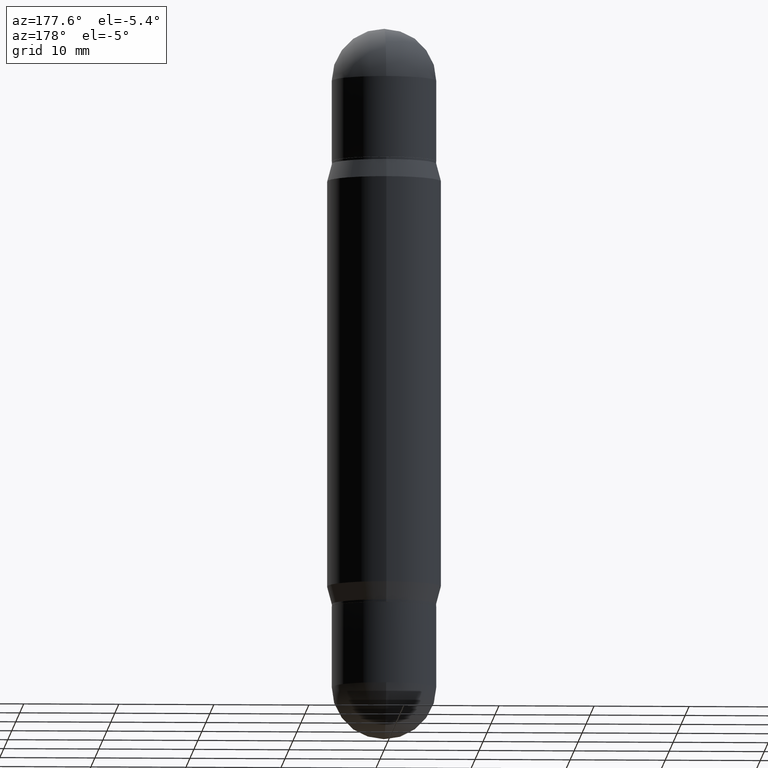
[diagram: clean part render]
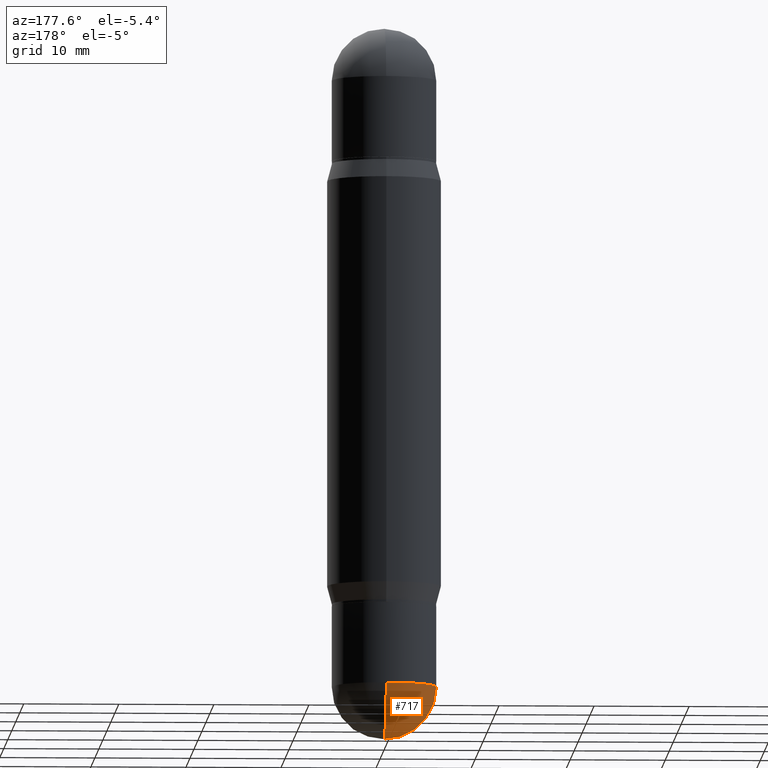
[diagram: same view with one face highlighted and labeled with its STEP entity id]
A machine part, auxiliary view. The second image highlights one B-rep face of the part: STEP entity #717.
In plain terms, the highlighted spherical surface has radius 5.5004 mm.
Its self-contained STEP definition (entity closure, byte-faithful):
#1 = DIRECTION ( 'NONE',  ( 6.982962677686265922E-15, 1.000000000000000000, 0.000000000000000000 ) ) ;
#38 = ORIENTED_EDGE ( 'NONE', *, *, #861, .F. ) ;
#114 = AXIS2_PLACEMENT_3D ( 'NONE', #777, #1048, #1 ) ;
#133 = EDGE_CURVE ( 'NONE', #1040, #602, #221, .T. ) ;
#134 = CIRCLE ( 'NONE', #1106, 0.2165500000000003811 ) ;
#137 = DIRECTION ( 'NONE',  ( -1.000000000000000000, 6.982962677686265922E-15, -4.883557194083112340E-29 ) ) ;
#163 = ORIENTED_EDGE ( 'NONE', *, *, #277, .F. ) ;
#204 = DIRECTION ( 'NONE',  ( 6.982962677686265922E-15, 1.000000000000000000, -2.523064413451173785E-15 ) ) ;
#219 = DIRECTION ( 'NONE',  ( -2.445468806185136597E-29, 3.491481338843145583E-15, 1.000000000000000000 ) ) ;
#221 = CIRCLE ( 'NONE', #114, 0.2165500000000003811 ) ;
#223 = VERTEX_POINT ( 'NONE', #969 ) ;
#229 = CARTESIAN_POINT ( 'NONE',  ( 6.691414020924079206E-29, -9.553565813409555750E-15, -2.736249999999999627 ) ) ;
#277 = EDGE_CURVE ( 'NONE', #602, #223, #315, .T. ) ;
#301 = SPHERICAL_SURFACE ( 'NONE', #498, 0.2165500000000003811 ) ;
#315 = CIRCLE ( 'NONE', #583, 0.2165500000000001035 ) ;
#380 = DIRECTION ( 'NONE',  ( 1.000000000000000000, -6.982962677686270655E-15, 0.000000000000000000 ) ) ;
#428 = DIRECTION ( 'NONE',  ( -7.105427357601001070E-15, -1.000000000000000000, 0.000000000000000000 ) ) ;
#463 = EDGE_CURVE ( 'NONE', #1040, #578, #134, .T. ) ;
#488 = CARTESIAN_POINT ( 'NONE',  ( 6.713302002095624841E-29, -9.522220978585379288E-15, -2.736249999999999627 ) ) ;
#498 = AXIS2_PLACEMENT_3D ( 'NONE', #647, #137, #204 ) ;
#562 = FACE_OUTER_BOUND ( 'NONE', #918, .T. ) ;
#578 = VERTEX_POINT ( 'NONE', #700 ) ;
#583 = AXIS2_PLACEMENT_3D ( 'NONE', #816, #219, #380 ) ;
#602 = VERTEX_POINT ( 'NONE', #612 ) ;
#611 = CARTESIAN_POINT ( 'NONE',  ( 7.252127585071107106E-29, -1.026504139929409708E-14, -2.952799999999999869 ) ) ;
#612 = CARTESIAN_POINT ( 'NONE',  ( 1.512160567853029651E-15, 0.2165499999999906944, -2.736250000000000071 ) ) ;
#647 = CARTESIAN_POINT ( 'NONE',  ( 6.713302002095624841E-29, -9.522220978585379288E-15, -2.736249999999999627 ) ) ;
#693 = AXIS2_PLACEMENT_3D ( 'NONE', #229, #932, #936 ) ;
#700 = CARTESIAN_POINT ( 'NONE',  ( -1.538680294288431227E-15, -0.2165500000000098180, -2.736249999999999183 ) ) ;
#717 = ADVANCED_FACE ( 'NONE', ( #562 ), #301, .T. ) ;
#734 = ORIENTED_EDGE ( 'NONE', *, *, #133, .F. ) ;
#755 = DIRECTION ( 'NONE',  ( -1.000000000000000000, 7.105427357601001070E-15, -4.926315508542082329E-29 ) ) ;
#777 = CARTESIAN_POINT ( 'NONE',  ( 6.713302002095624841E-29, -9.522220978585379288E-15, -2.736249999999999627 ) ) ;
#816 = CARTESIAN_POINT ( 'NONE',  ( 6.691414020924079206E-29, -9.553565813409555750E-15, -2.736249999999999627 ) ) ;
#861 = EDGE_CURVE ( 'NONE', #223, #578, #948, .T. ) ;
#918 = EDGE_LOOP ( 'NONE', ( #734, #958, #38, #163 ) ) ;
#932 = DIRECTION ( 'NONE',  ( -2.445468806185136597E-29, 3.491481338843145583E-15, 1.000000000000000000 ) ) ;
#936 = DIRECTION ( 'NONE',  ( 1.000000000000000000, -6.982962677686270655E-15, 0.000000000000000000 ) ) ;
#948 = CIRCLE ( 'NONE', #693, 0.2165500000000001035 ) ;
#958 = ORIENTED_EDGE ( 'NONE', *, *, #463, .T. ) ;
#969 = CARTESIAN_POINT ( 'NONE',  ( -0.2165500000000001035, -7.430673404099130988E-15, -2.736249999999999627 ) ) ;
#1040 = VERTEX_POINT ( 'NONE', #611 ) ;
#1048 = DIRECTION ( 'NONE',  ( 1.000000000000000000, -6.982962677686265922E-15, 4.883557194083112340E-29 ) ) ;
#1106 = AXIS2_PLACEMENT_3D ( 'NONE', #488, #755, #428 ) ;